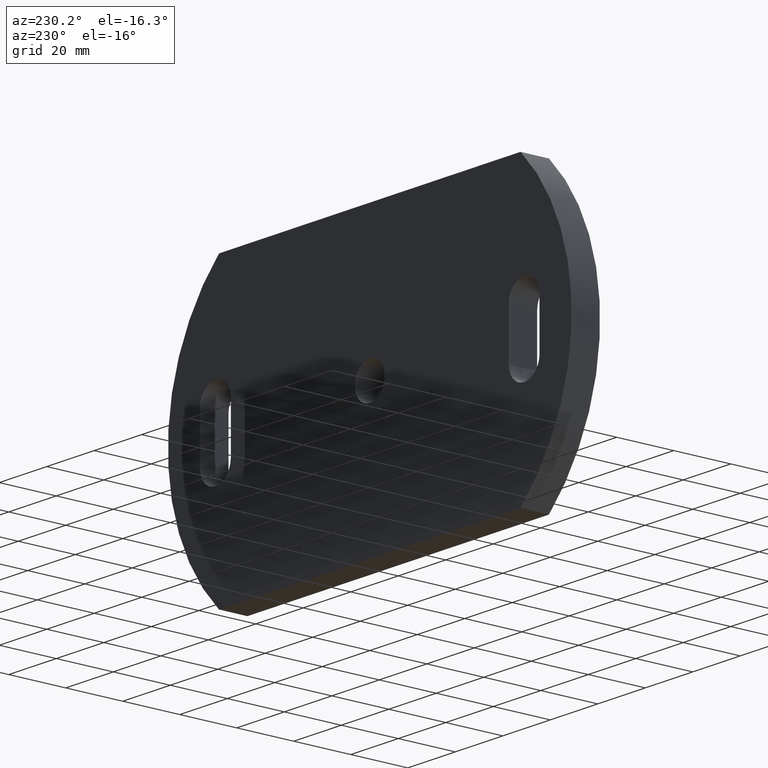
[diagram: clean part render]
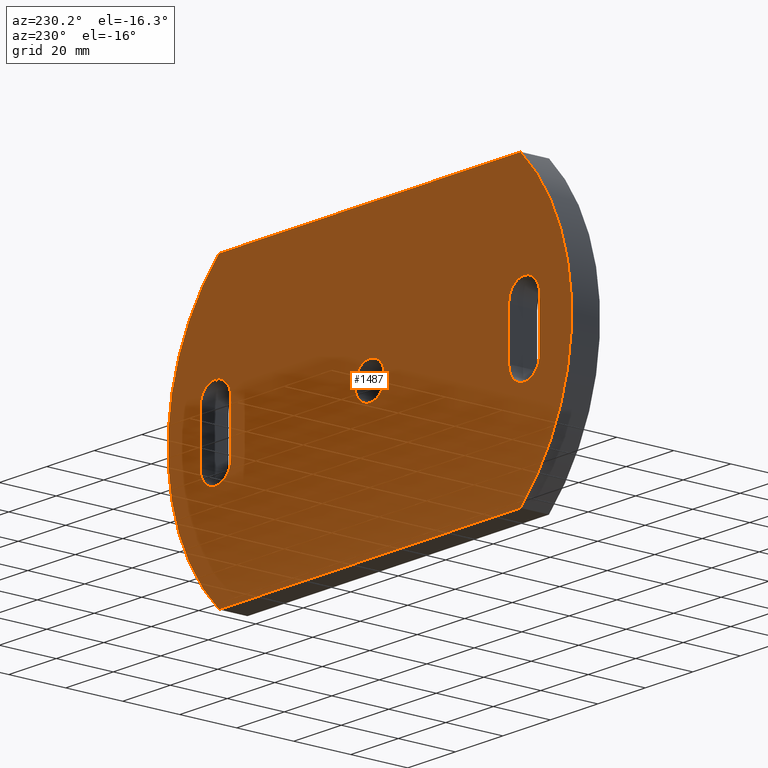
[diagram: same view with one face highlighted and labeled with its STEP entity id]
A machine part, auxiliary view. The second image highlights one B-rep face of the part: STEP entity #1487.
In plain terms, the highlighted planar face has unit normal (0, -1, 0).
Its self-contained STEP definition (entity closure, byte-faithful):
#46 = ORIENTED_EDGE ( 'NONE', *, *, #6705, .F. ) ;
#117 = EDGE_LOOP ( 'NONE', ( #6594, #5911, #8980, #6018, #9807 ) ) ;
#233 = VERTEX_POINT ( 'NONE', #1585 ) ;
#255 = DIRECTION ( 'NONE',  ( -0.0000000000000000000, -0.0000000000000000000, -1.000000000000000000 ) ) ;
#353 = CARTESIAN_POINT ( 'NONE',  ( -65.00000000000000000, 10.00000000000000000, -8.500000000000010700 ) ) ;
#533 = AXIS2_PLACEMENT_3D ( 'NONE', #5274, #1139, #1027 ) ;
#656 = CIRCLE ( 'NONE', #8255, 6.499999999999992000 ) ;
#775 = VERTEX_POINT ( 'NONE', #5575 ) ;
#827 = VERTEX_POINT ( 'NONE', #8258 ) ;
#875 = DIRECTION ( 'NONE',  ( 0.0000000000000000000, 1.000000000000000000, 0.0000000000000000000 ) ) ;
#1026 = EDGE_LOOP ( 'NONE', ( #8101, #7229 ) ) ;
#1027 = DIRECTION ( 'NONE',  ( 0.0000000000000000000, 0.0000000000000000000, 1.000000000000000000 ) ) ;
#1139 = DIRECTION ( 'NONE',  ( 0.0000000000000000000, 1.000000000000000000, 0.0000000000000000000 ) ) ;
#1173 = VECTOR ( 'NONE', #7056, 1000.000000000000000 ) ;
#1230 = CARTESIAN_POINT ( 'NONE',  ( -16.11046511627906600, 10.00000000000000000, -3.469446951953614200E-015 ) ) ;
#1262 = CARTESIAN_POINT ( 'NONE',  ( -71.50000000000000000, 10.00000000000000000, -8.499999999999985800 ) ) ;
#1349 = CARTESIAN_POINT ( 'NONE',  ( 58.49999999999998600, 10.00000000000000000, -8.500000000000008900 ) ) ;
#1434 = VECTOR ( 'NONE', #8743, 1000.000000000000000 ) ;
#1440 = VECTOR ( 'NONE', #255, 1000.000000000000000 ) ;
#1487 = ADVANCED_FACE ( 'NONE', ( #8225, #6775, #5320, #8618 ), #6912, .F. ) ;
#1585 = CARTESIAN_POINT ( 'NONE',  ( -58.50000000000000700, 10.00000000000000000, -8.499999999999984000 ) ) ;
#1628 = CARTESIAN_POINT ( 'NONE',  ( 65.00000000000000000, 10.00000000000000000, -8.499999999999987600 ) ) ;
#1697 = VERTEX_POINT ( 'NONE', #7850 ) ;
#1732 = CARTESIAN_POINT ( 'NONE',  ( 63.50000000000002800, 10.00000000000000000, -49.99999999999997200 ) ) ;
#1803 = ORIENTED_EDGE ( 'NONE', *, *, #9167, .T. ) ;
#2051 = DIRECTION ( 'NONE',  ( 0.0000000000000000000, -1.000000000000000000, 0.0000000000000000000 ) ) ;
#2059 = DIRECTION ( 'NONE',  ( 0.0000000000000000000, 1.000000000000000000, 0.0000000000000000000 ) ) ;
#2083 = CIRCLE ( 'NONE', #3357, 6.500000000000005300 ) ;
#2094 = AXIS2_PLACEMENT_3D ( 'NONE', #6650, #3454, #5030 ) ;
#2218 = CARTESIAN_POINT ( 'NONE',  ( -71.50000000000000000, 10.00000000000000000, 8.499999999999982200 ) ) ;
#2228 = CIRCLE ( 'NONE', #4620, 6.500000000000005300 ) ;
#2256 = CARTESIAN_POINT ( 'NONE',  ( -63.50000000000001400, 10.00000000000000000, 49.99999999999997900 ) ) ;
#2341 = EDGE_CURVE ( 'NONE', #9878, #775, #2593, .T. ) ;
#2364 = VECTOR ( 'NONE', #5364, 1000.000000000000000 ) ;
#2593 = LINE ( 'NONE', #1349, #1434 ) ;
#2677 = EDGE_CURVE ( 'NONE', #9726, #8507, #3759, .T. ) ;
#2697 = CARTESIAN_POINT ( 'NONE',  ( 58.49999999999998600, 10.00000000000000000, -8.500000000000008900 ) ) ;
#3051 = EDGE_CURVE ( 'NONE', #5359, #827, #8430, .T. ) ;
#3082 = DIRECTION ( 'NONE',  ( 0.0000000000000000000, 1.000000000000000000, 0.0000000000000000000 ) ) ;
#3162 = CARTESIAN_POINT ( 'NONE',  ( 65.00000000000000000, 10.00000000000000000, 8.500000000000010700 ) ) ;
#3208 = DIRECTION ( 'NONE',  ( 0.0000000000000000000, 1.000000000000000000, 0.0000000000000000000 ) ) ;
#3238 = VERTEX_POINT ( 'NONE', #2218 ) ;
#3357 = AXIS2_PLACEMENT_3D ( 'NONE', #10423, #10463, #6301 ) ;
#3421 = EDGE_CURVE ( 'NONE', #8836, #3695, #8301, .T. ) ;
#3454 = DIRECTION ( 'NONE',  ( 0.0000000000000000000, 1.000000000000000000, 0.0000000000000000000 ) ) ;
#3490 = AXIS2_PLACEMENT_3D ( 'NONE', #353, #2059, #7036 ) ;
#3684 = DIRECTION ( 'NONE',  ( 0.0000000000000000000, -0.0000000000000000000, -1.000000000000000000 ) ) ;
#3695 = VERTEX_POINT ( 'NONE', #4712 ) ;
#3759 = LINE ( 'NONE', #5118, #6358 ) ;
#3780 = CIRCLE ( 'NONE', #7617, 6.250000000000000000 ) ;
#3841 = ORIENTED_EDGE ( 'NONE', *, *, #5429, .F. ) ;
#3981 = VERTEX_POINT ( 'NONE', #7981 ) ;
#4213 = DIRECTION ( 'NONE',  ( 0.0000000000000000000, 0.0000000000000000000, 1.000000000000000000 ) ) ;
#4253 = CARTESIAN_POINT ( 'NONE',  ( 0.0000000000000000000, 10.00000000000000000, 0.0000000000000000000 ) ) ;
#4499 = EDGE_CURVE ( 'NONE', #1697, #10737, #5253, .T. ) ;
#4554 = LINE ( 'NONE', #1262, #1173 ) ;
#4620 = AXIS2_PLACEMENT_3D ( 'NONE', #1628, #9127, #4925 ) ;
#4684 = LINE ( 'NONE', #8168, #2364 ) ;
#4712 = CARTESIAN_POINT ( 'NONE',  ( -58.50000000000000700, 10.00000000000000000, 8.499999999999984000 ) ) ;
#4745 = CARTESIAN_POINT ( 'NONE',  ( 71.50000000000000000, 10.00000000000000000, -8.500000000000010700 ) ) ;
#4821 = AXIS2_PLACEMENT_3D ( 'NONE', #1230, #3208, #9033 ) ;
#4890 = EDGE_LOOP ( 'NONE', ( #8794, #3841, #8796, #9348, #46 ) ) ;
#4925 = DIRECTION ( 'NONE',  ( 0.0000000000000000000, 0.0000000000000000000, 1.000000000000000000 ) ) ;
#5030 = DIRECTION ( 'NONE',  ( 0.0000000000000000000, 0.0000000000000000000, 1.000000000000000000 ) ) ;
#5053 = CARTESIAN_POINT ( 'NONE',  ( 71.50000000000000000, 10.00000000000000000, -8.500000000000010700 ) ) ;
#5061 = AXIS2_PLACEMENT_3D ( 'NONE', #7765, #2051, #3684 ) ;
#5118 = CARTESIAN_POINT ( 'NONE',  ( -63.49999999999998600, 10.00000000000000000, -50.00000000000002100 ) ) ;
#5253 = LINE ( 'NONE', #2256, #6447 ) ;
#5274 = CARTESIAN_POINT ( 'NONE',  ( -65.00000000000000000, 10.00000000000000000, 8.499999999999989300 ) ) ;
#5307 = EDGE_LOOP ( 'NONE', ( #9761, #5644, #1803, #10174 ) ) ;
#5315 = EDGE_CURVE ( 'NONE', #10737, #9726, #10324, .T. ) ;
#5320 = FACE_BOUND ( 'NONE', #1026, .T. ) ;
#5359 = VERTEX_POINT ( 'NONE', #8512 ) ;
#5364 = DIRECTION ( 'NONE',  ( -0.0000000000000000000, -0.0000000000000000000, -1.000000000000000000 ) ) ;
#5365 = CIRCLE ( 'NONE', #3490, 6.499999999999992000 ) ;
#5429 = EDGE_CURVE ( 'NONE', #233, #5636, #5365, .T. ) ;
#5575 = CARTESIAN_POINT ( 'NONE',  ( 58.50000000000000000, 10.00000000000000000, 8.500000000000008900 ) ) ;
#5636 = VERTEX_POINT ( 'NONE', #10642 ) ;
#5644 = ORIENTED_EDGE ( 'NONE', *, *, #2677, .T. ) ;
#5911 = ORIENTED_EDGE ( 'NONE', *, *, #9275, .F. ) ;
#5947 = CARTESIAN_POINT ( 'NONE',  ( 16.11046511627908000, 10.00000000000000000, -3.469446951953614200E-015 ) ) ;
#6018 = ORIENTED_EDGE ( 'NONE', *, *, #9714, .F. ) ;
#6242 = CIRCLE ( 'NONE', #4821, 68.88953488372092700 ) ;
#6301 = DIRECTION ( 'NONE',  ( 0.0000000000000000000, 0.0000000000000000000, 1.000000000000000000 ) ) ;
#6358 = VECTOR ( 'NONE', #10130, 1000.000000000000000 ) ;
#6428 = AXIS2_PLACEMENT_3D ( 'NONE', #5947, #9284, #7658 ) ;
#6447 = VECTOR ( 'NONE', #8084, 1000.000000000000000 ) ;
#6594 = ORIENTED_EDGE ( 'NONE', *, *, #2341, .F. ) ;
#6650 = CARTESIAN_POINT ( 'NONE',  ( 0.0000000000000000000, 10.00000000000000000, 0.0000000000000000000 ) ) ;
#6705 = EDGE_CURVE ( 'NONE', #3238, #8836, #656, .T. ) ;
#6775 = FACE_BOUND ( 'NONE', #4890, .T. ) ;
#6912 = PLANE ( 'NONE',  #5061 ) ;
#7036 = DIRECTION ( 'NONE',  ( 0.0000000000000000000, 0.0000000000000000000, 1.000000000000000000 ) ) ;
#7056 = DIRECTION ( 'NONE',  ( 0.0000000000000000000, 0.0000000000000000000, 1.000000000000000000 ) ) ;
#7156 = VERTEX_POINT ( 'NONE', #9794 ) ;
#7229 = ORIENTED_EDGE ( 'NONE', *, *, #3051, .F. ) ;
#7617 = AXIS2_PLACEMENT_3D ( 'NONE', #4253, #10082, #9353 ) ;
#7658 = DIRECTION ( 'NONE',  ( 0.0000000000000000000, 0.0000000000000000000, -1.000000000000000000 ) ) ;
#7765 = CARTESIAN_POINT ( 'NONE',  ( 16.11046511627908000, 10.00000000000000000, -3.469446951953614200E-015 ) ) ;
#7850 = CARTESIAN_POINT ( 'NONE',  ( -63.50000000000001400, 10.00000000000000000, 49.99999999999997900 ) ) ;
#7981 = CARTESIAN_POINT ( 'NONE',  ( 71.50000000000000000, 10.00000000000000000, 8.500000000000010700 ) ) ;
#8050 = CARTESIAN_POINT ( 'NONE',  ( 63.49999999999998600, 10.00000000000000000, 50.00000000000001400 ) ) ;
#8084 = DIRECTION ( 'NONE',  ( 1.000000000000000000, 0.0000000000000000000, 2.731847993664263200E-016 ) ) ;
#8101 = ORIENTED_EDGE ( 'NONE', *, *, #9409, .F. ) ;
#8168 = CARTESIAN_POINT ( 'NONE',  ( -58.50000000000000700, 10.00000000000000000, -8.499999999999984000 ) ) ;
#8225 = FACE_BOUND ( 'NONE', #117, .T. ) ;
#8255 = AXIS2_PLACEMENT_3D ( 'NONE', #9706, #3082, #10427 ) ;
#8258 = CARTESIAN_POINT ( 'NONE',  ( 0.0000000000000000000, 10.00000000000000000, 6.250000000000000000 ) ) ;
#8301 = CIRCLE ( 'NONE', #533, 6.499999999999992000 ) ;
#8430 = CIRCLE ( 'NONE', #2094, 6.250000000000000000 ) ;
#8507 = VERTEX_POINT ( 'NONE', #9208 ) ;
#8512 = CARTESIAN_POINT ( 'NONE',  ( 7.654042494670957600E-016, 10.00000000000000000, -6.250000000000000000 ) ) ;
#8599 = EDGE_CURVE ( 'NONE', #3981, #9792, #8997, .T. ) ;
#8618 = FACE_OUTER_BOUND ( 'NONE', #5307, .T. ) ;
#8743 = DIRECTION ( 'NONE',  ( 0.0000000000000000000, 0.0000000000000000000, 1.000000000000000000 ) ) ;
#8794 = ORIENTED_EDGE ( 'NONE', *, *, #10589, .F. ) ;
#8796 = ORIENTED_EDGE ( 'NONE', *, *, #9160, .F. ) ;
#8828 = EDGE_CURVE ( 'NONE', #775, #7156, #2083, .T. ) ;
#8836 = VERTEX_POINT ( 'NONE', #9520 ) ;
#8980 = ORIENTED_EDGE ( 'NONE', *, *, #8599, .F. ) ;
#8997 = LINE ( 'NONE', #4745, #1440 ) ;
#9033 = DIRECTION ( 'NONE',  ( 0.0000000000000000000, 0.0000000000000000000, 1.000000000000000000 ) ) ;
#9127 = DIRECTION ( 'NONE',  ( 0.0000000000000000000, 1.000000000000000000, 0.0000000000000000000 ) ) ;
#9160 = EDGE_CURVE ( 'NONE', #3695, #233, #4684, .T. ) ;
#9167 = EDGE_CURVE ( 'NONE', #8507, #1697, #6242, .T. ) ;
#9208 = CARTESIAN_POINT ( 'NONE',  ( -63.49999999999997200, 10.00000000000000000, -50.00000000000002800 ) ) ;
#9275 = EDGE_CURVE ( 'NONE', #9792, #9878, #2228, .T. ) ;
#9284 = DIRECTION ( 'NONE',  ( 0.0000000000000000000, 1.000000000000000000, -0.0000000000000000000 ) ) ;
#9348 = ORIENTED_EDGE ( 'NONE', *, *, #3421, .F. ) ;
#9353 = DIRECTION ( 'NONE',  ( 0.0000000000000000000, 0.0000000000000000000, 1.000000000000000000 ) ) ;
#9409 = EDGE_CURVE ( 'NONE', #827, #5359, #3780, .T. ) ;
#9520 = CARTESIAN_POINT ( 'NONE',  ( -65.00000000000000000, 10.00000000000000000, 14.99999999999998000 ) ) ;
#9706 = CARTESIAN_POINT ( 'NONE',  ( -65.00000000000000000, 10.00000000000000000, 8.499999999999989300 ) ) ;
#9714 = EDGE_CURVE ( 'NONE', #7156, #3981, #10764, .T. ) ;
#9726 = VERTEX_POINT ( 'NONE', #1732 ) ;
#9761 = ORIENTED_EDGE ( 'NONE', *, *, #5315, .T. ) ;
#9792 = VERTEX_POINT ( 'NONE', #5053 ) ;
#9794 = CARTESIAN_POINT ( 'NONE',  ( 65.00000000000000000, 10.00000000000000000, 15.00000000000001600 ) ) ;
#9807 = ORIENTED_EDGE ( 'NONE', *, *, #8828, .F. ) ;
#9878 = VERTEX_POINT ( 'NONE', #2697 ) ;
#10082 = DIRECTION ( 'NONE',  ( 0.0000000000000000000, 1.000000000000000000, 0.0000000000000000000 ) ) ;
#10130 = DIRECTION ( 'NONE',  ( -1.000000000000000000, -0.0000000000000000000, -3.824587191129968500E-016 ) ) ;
#10174 = ORIENTED_EDGE ( 'NONE', *, *, #4499, .T. ) ;
#10324 = CIRCLE ( 'NONE', #6428, 68.88953488372092700 ) ;
#10423 = CARTESIAN_POINT ( 'NONE',  ( 65.00000000000000000, 10.00000000000000000, 8.500000000000010700 ) ) ;
#10427 = DIRECTION ( 'NONE',  ( 0.0000000000000000000, 0.0000000000000000000, 1.000000000000000000 ) ) ;
#10463 = DIRECTION ( 'NONE',  ( 0.0000000000000000000, 1.000000000000000000, 0.0000000000000000000 ) ) ;
#10589 = EDGE_CURVE ( 'NONE', #5636, #3238, #4554, .T. ) ;
#10642 = CARTESIAN_POINT ( 'NONE',  ( -71.49999999999998600, 10.00000000000000000, -8.499999999999985800 ) ) ;
#10727 = AXIS2_PLACEMENT_3D ( 'NONE', #3162, #875, #4213 ) ;
#10737 = VERTEX_POINT ( 'NONE', #8050 ) ;
#10764 = CIRCLE ( 'NONE', #10727, 6.500000000000005300 ) ;